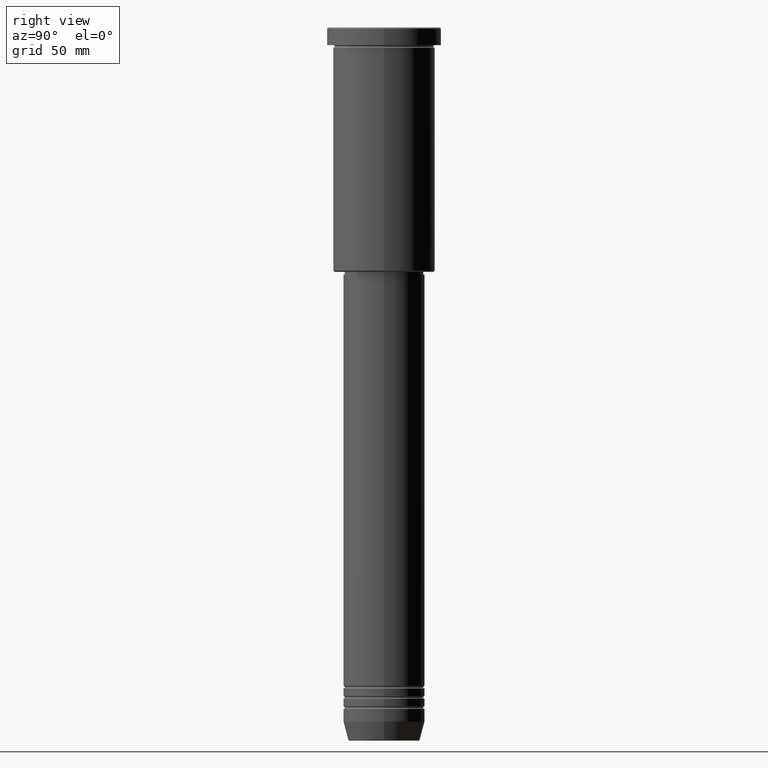
[diagram: clean part render]
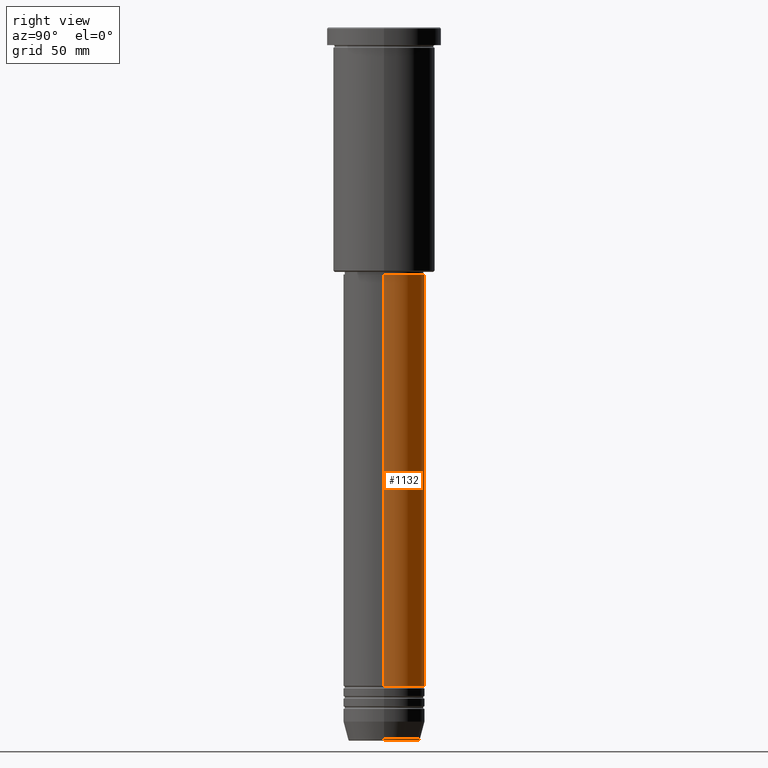
[diagram: same view with one face highlighted and labeled with its STEP entity id]
A machine part, right view. The second image highlights one B-rep face of the part: STEP entity #1132.
In plain terms, the highlighted cylindrical surface (partial cylindrical patch) has radius 16 mm, axis along (-0, -0, 1).
Its self-contained STEP definition (entity closure, byte-faithful):
#15 = ORIENTED_EDGE ( 'NONE', *, *, #333, .T. ) ;
#50 = CYLINDRICAL_SURFACE ( 'NONE', #551, 16.00000000000000000 ) ;
#90 = FACE_OUTER_BOUND ( 'NONE', #960, .T. ) ;
#93 = EDGE_CURVE ( 'NONE', #251, #589, #137, .T. ) ;
#130 = CARTESIAN_POINT ( 'NONE',  ( 16.00000000000000000, 0.000000000000000000, 0.000000000000000000 ) ) ;
#137 = LINE ( 'NONE', #130, #893 ) ;
#172 = CARTESIAN_POINT ( 'NONE',  ( 16.00000000000000000, 0.000000000000000000, -258.5000000000000000 ) ) ;
#204 = ORIENTED_EDGE ( 'NONE', *, *, #609, .F. ) ;
#219 = CARTESIAN_POINT ( 'NONE',  ( -16.00000000000000000, 1.959434878635765131E-15, -97.00000000000002842 ) ) ;
#246 = VERTEX_POINT ( 'NONE', #438 ) ;
#251 = VERTEX_POINT ( 'NONE', #172 ) ;
#270 = AXIS2_PLACEMENT_3D ( 'NONE', #380, #734, #558 ) ;
#333 = EDGE_CURVE ( 'NONE', #251, #246, #912, .T. ) ;
#380 = CARTESIAN_POINT ( 'NONE',  ( 0.000000000000000000, 0.000000000000000000, -258.5000000000000000 ) ) ;
#438 = CARTESIAN_POINT ( 'NONE',  ( -16.00000000000000000, 1.959434878635765131E-15, -258.5000000000000000 ) ) ;
#503 = CIRCLE ( 'NONE', #935, 16.00000000000000000 ) ;
#506 = DIRECTION ( 'NONE',  ( 1.000000000000000000, 0.000000000000000000, 0.000000000000000000 ) ) ;
#551 = AXIS2_PLACEMENT_3D ( 'NONE', #812, #1179, #506 ) ;
#558 = DIRECTION ( 'NONE',  ( 1.000000000000000000, 0.000000000000000000, 0.000000000000000000 ) ) ;
#589 = VERTEX_POINT ( 'NONE', #1054 ) ;
#609 = EDGE_CURVE ( 'NONE', #589, #1001, #503, .T. ) ;
#615 = DIRECTION ( 'NONE',  ( -0.000000000000000000, -0.000000000000000000, 1.000000000000000000 ) ) ;
#734 = DIRECTION ( 'NONE',  ( -0.000000000000000000, -0.000000000000000000, 1.000000000000000000 ) ) ;
#756 = VECTOR ( 'NONE', #838, 1000.000000000000000 ) ;
#812 = CARTESIAN_POINT ( 'NONE',  ( 0.000000000000000000, 0.000000000000000000, 0.000000000000000000 ) ) ;
#824 = ORIENTED_EDGE ( 'NONE', *, *, #93, .F. ) ;
#838 = DIRECTION ( 'NONE',  ( -0.000000000000000000, -0.000000000000000000, 1.000000000000000000 ) ) ;
#893 = VECTOR ( 'NONE', #1131, 1000.000000000000000 ) ;
#912 = CIRCLE ( 'NONE', #270, 16.00000000000000000 ) ;
#919 = ORIENTED_EDGE ( 'NONE', *, *, #983, .T. ) ;
#935 = AXIS2_PLACEMENT_3D ( 'NONE', #1147, #615, #1170 ) ;
#960 = EDGE_LOOP ( 'NONE', ( #15, #919, #204, #824 ) ) ;
#983 = EDGE_CURVE ( 'NONE', #246, #1001, #1027, .T. ) ;
#1001 = VERTEX_POINT ( 'NONE', #219 ) ;
#1027 = LINE ( 'NONE', #1107, #756 ) ;
#1054 = CARTESIAN_POINT ( 'NONE',  ( 16.00000000000000000, 0.000000000000000000, -97.00000000000002842 ) ) ;
#1107 = CARTESIAN_POINT ( 'NONE',  ( -16.00000000000000000, 1.959434878635765131E-15, 0.000000000000000000 ) ) ;
#1131 = DIRECTION ( 'NONE',  ( -0.000000000000000000, -0.000000000000000000, 1.000000000000000000 ) ) ;
#1132 = ADVANCED_FACE ( 'NONE', ( #90 ), #50, .T. ) ;
#1147 = CARTESIAN_POINT ( 'NONE',  ( 0.000000000000000000, 0.000000000000000000, -97.00000000000002842 ) ) ;
#1170 = DIRECTION ( 'NONE',  ( 1.000000000000000000, 0.000000000000000000, 0.000000000000000000 ) ) ;
#1179 = DIRECTION ( 'NONE',  ( -0.000000000000000000, -0.000000000000000000, 1.000000000000000000 ) ) ;